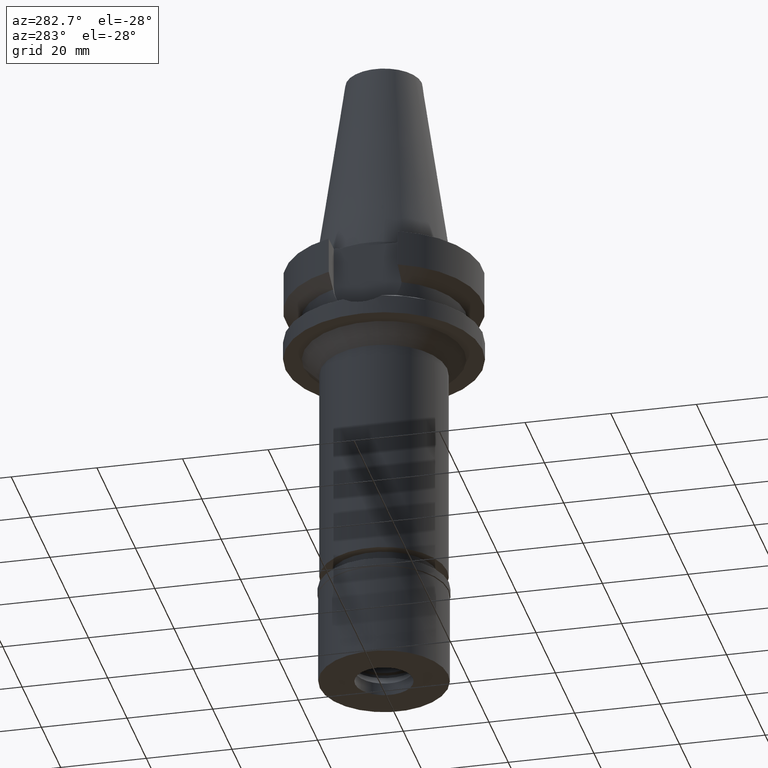
[diagram: clean part render]
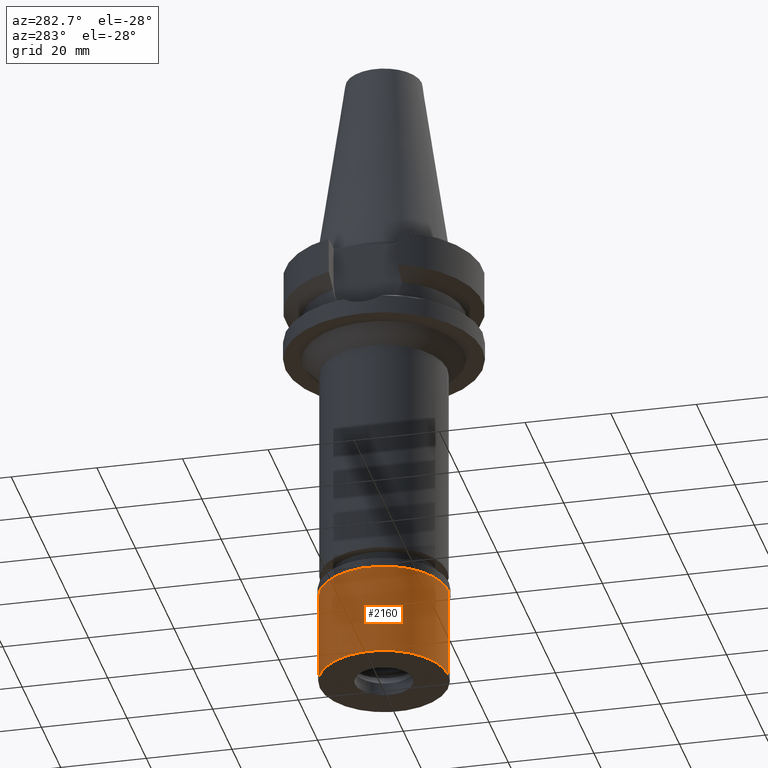
[diagram: same view with one face highlighted and labeled with its STEP entity id]
A machine part, auxiliary view. The second image highlights one B-rep face of the part: STEP entity #2160.
In plain terms, the highlighted cylindrical surface (partial cylindrical patch) has radius 15 mm, axis along (0, 0, -1).
Its self-contained STEP definition (entity closure, byte-faithful):
#77 = VECTOR ( 'NONE', #234, 1000.000000000000000 ) ;
#185 = EDGE_CURVE ( 'NONE', #1565, #221, #1053, .T. ) ;
#221 = VERTEX_POINT ( 'NONE', #2538 ) ;
#234 = DIRECTION ( 'NONE',  ( 0.0000000000000000000, 0.0000000000000000000, -1.000000000000000000 ) ) ;
#264 = ORIENTED_EDGE ( 'NONE', *, *, #185, .T. ) ;
#329 = DIRECTION ( 'NONE',  ( 0.0000000000000000000, 1.000000000000000000, 0.0000000000000000000 ) ) ;
#414 = DIRECTION ( 'NONE',  ( 0.0000000000000000000, 0.0000000000000000000, -1.000000000000000000 ) ) ;
#517 = CARTESIAN_POINT ( 'NONE',  ( 0.0000000000000000000, 0.0000000000000000000, 0.0000000000000000000 ) ) ;
#635 = EDGE_CURVE ( 'NONE', #221, #1006, #662, .T. ) ;
#653 = CARTESIAN_POINT ( 'NONE',  ( 0.0000000000000000000, 0.0000000000000000000, -2.100000000000000089 ) ) ;
#662 = LINE ( 'NONE', #1310, #2192 ) ;
#828 = FACE_OUTER_BOUND ( 'NONE', #1712, .T. ) ;
#1006 = VERTEX_POINT ( 'NONE', #2330 ) ;
#1053 = CIRCLE ( 'NONE', #2383, 15.00000000000000000 ) ;
#1272 = AXIS2_PLACEMENT_3D ( 'NONE', #2780, #2795, #329 ) ;
#1310 = CARTESIAN_POINT ( 'NONE',  ( 0.0000000000000000000, 15.00000000000000000, -2.100000000000000089 ) ) ;
#1411 = DIRECTION ( 'NONE',  ( 0.0000000000000000000, 0.0000000000000000000, -1.000000000000000000 ) ) ;
#1413 = EDGE_CURVE ( 'NONE', #1565, #2085, #2291, .T. ) ;
#1416 = CARTESIAN_POINT ( 'NONE',  ( 0.0000000000000000000, -15.00000000000000000, -2.100000000000000089 ) ) ;
#1472 = AXIS2_PLACEMENT_3D ( 'NONE', #517, #1411, #2325 ) ;
#1543 = DIRECTION ( 'NONE',  ( 0.0000000000000000000, 0.0000000000000000000, -1.000000000000000000 ) ) ;
#1565 = VERTEX_POINT ( 'NONE', #1416 ) ;
#1659 = ORIENTED_EDGE ( 'NONE', *, *, #635, .T. ) ;
#1712 = EDGE_LOOP ( 'NONE', ( #2133, #2525, #264, #1659 ) ) ;
#2038 = CARTESIAN_POINT ( 'NONE',  ( 0.0000000000000000000, -15.00000000000000000, -2.100000000000000089 ) ) ;
#2085 = VERTEX_POINT ( 'NONE', #2596 ) ;
#2133 = ORIENTED_EDGE ( 'NONE', *, *, #2650, .T. ) ;
#2160 = ADVANCED_FACE ( 'NONE', ( #828 ), #2541, .T. ) ;
#2192 = VECTOR ( 'NONE', #414, 1000.000000000000000 ) ;
#2291 = LINE ( 'NONE', #2038, #77 ) ;
#2325 = DIRECTION ( 'NONE',  ( 0.0000000000000000000, -1.000000000000000000, 0.0000000000000000000 ) ) ;
#2330 = CARTESIAN_POINT ( 'NONE',  ( 0.0000000000000000000, 15.00000000000000000, -23.80000000000000071 ) ) ;
#2383 = AXIS2_PLACEMENT_3D ( 'NONE', #653, #1543, #2447 ) ;
#2447 = DIRECTION ( 'NONE',  ( 0.0000000000000000000, -1.000000000000000000, 0.0000000000000000000 ) ) ;
#2525 = ORIENTED_EDGE ( 'NONE', *, *, #1413, .F. ) ;
#2538 = CARTESIAN_POINT ( 'NONE',  ( 0.0000000000000000000, 15.00000000000000000, -2.100000000000000089 ) ) ;
#2541 = CYLINDRICAL_SURFACE ( 'NONE', #1472, 15.00000000000000000 ) ;
#2596 = CARTESIAN_POINT ( 'NONE',  ( 0.0000000000000000000, -15.00000000000000000, -23.80000000000000071 ) ) ;
#2650 = EDGE_CURVE ( 'NONE', #1006, #2085, #2738, .T. ) ;
#2738 = CIRCLE ( 'NONE', #1272, 15.00000000000000000 ) ;
#2780 = CARTESIAN_POINT ( 'NONE',  ( 0.0000000000000000000, 0.0000000000000000000, -23.80000000000000071 ) ) ;
#2795 = DIRECTION ( 'NONE',  ( 0.0000000000000000000, 0.0000000000000000000, 1.000000000000000000 ) ) ;